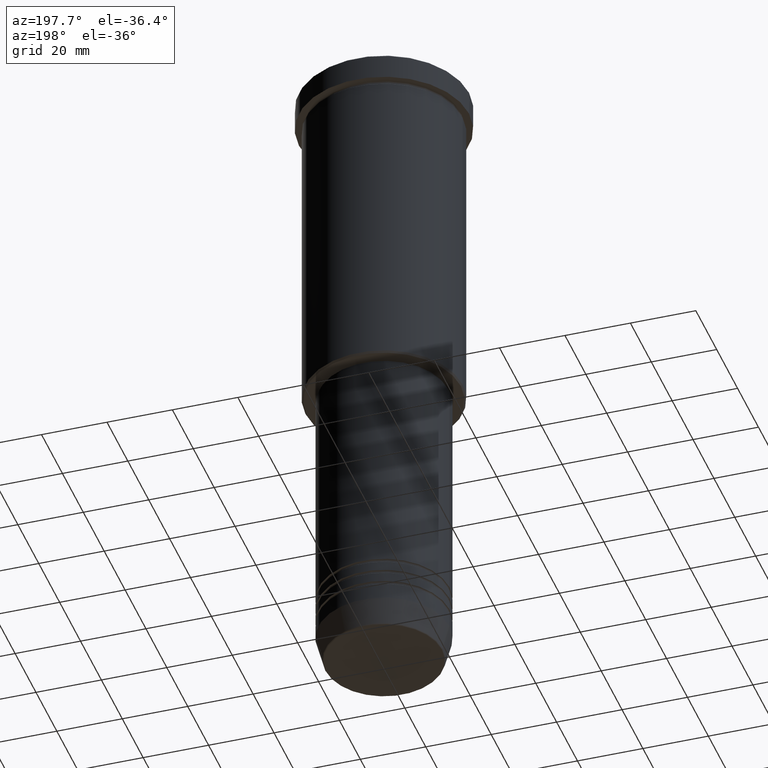
[diagram: clean part render]
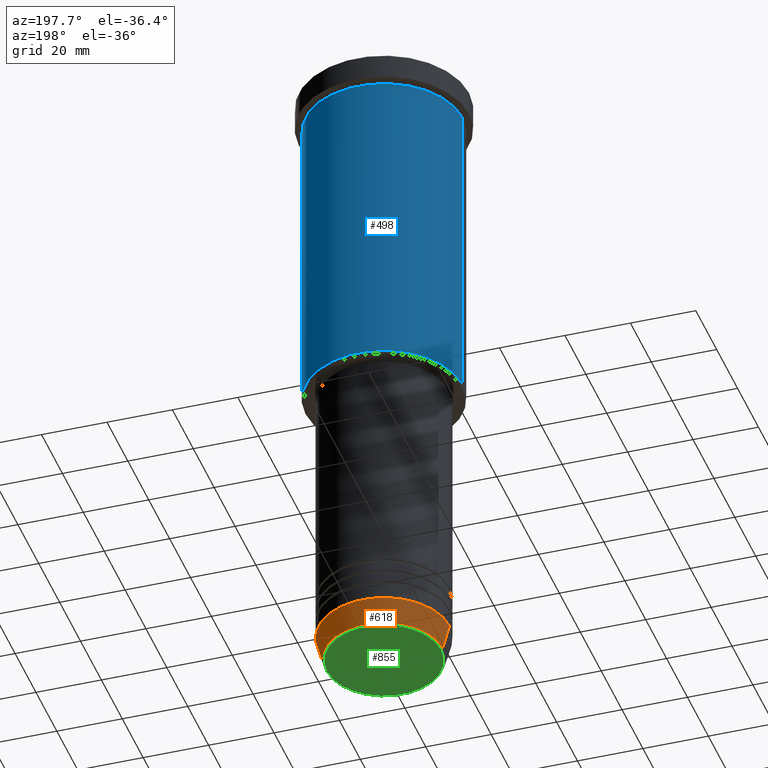
[diagram: same view with three faces highlighted in distinct colors, each labeled with its STEP entity id]
A machine part, auxiliary view with three faces highlighted in distinct colors.
Their STEP definitions:

[orange] entity #618 — the highlighted conical surface has half-angle 15 deg.
#16 = VECTOR ( 'NONE', #709, 1000.000000000000000 ) ;
#69 = DIRECTION ( 'NONE',  ( 1.000000000000000000, 0.000000000000000000, 0.000000000000000000 ) ) ;
#92 = VERTEX_POINT ( 'NONE', #394 ) ;
#122 = CARTESIAN_POINT ( 'NONE',  ( 0.000000000000000000, 0.000000000000000000, -192.0000000000000284 ) ) ;
#129 = ORIENTED_EDGE ( 'NONE', *, *, #1167, .F. ) ;
#165 = ORIENTED_EDGE ( 'NONE', *, *, #265, .F. ) ;
#193 = ORIENTED_EDGE ( 'NONE', *, *, #612, .T. ) ;
#240 = VERTEX_POINT ( 'NONE', #400 ) ;
#265 = EDGE_CURVE ( 'NONE', #444, #92, #1058, .T. ) ;
#316 = AXIS2_PLACEMENT_3D ( 'NONE', #850, #739, #69 ) ;
#333 = LINE ( 'NONE', #514, #16 ) ;
#394 = CARTESIAN_POINT ( 'NONE',  ( 20.00000000000000355, 0.000000000000000000, -192.0000000000000284 ) ) ;
#400 = CARTESIAN_POINT ( 'NONE',  ( -17.95570587970607690, 2.324116685748021371E-15, -199.6294095225512990 ) ) ;
#444 = VERTEX_POINT ( 'NONE', #1106 ) ;
#453 = ORIENTED_EDGE ( 'NONE', *, *, #622, .T. ) ;
#514 = CARTESIAN_POINT ( 'NONE',  ( -20.00000000000000355, 2.449293598294706907E-15, -192.0000000000000284 ) ) ;
#586 = CIRCLE ( 'NONE', #316, 17.95570587970607690 ) ;
#591 = DIRECTION ( 'NONE',  ( -0.000000000000000000, -0.000000000000000000, 1.000000000000000000 ) ) ;
#612 = EDGE_CURVE ( 'NONE', #240, #793, #333, .T. ) ;
#618 = ADVANCED_FACE ( 'NONE', ( #763 ), #718, .T. ) ;
#622 = EDGE_CURVE ( 'NONE', #444, #240, #586, .T. ) ;
#658 = CARTESIAN_POINT ( 'NONE',  ( -20.00000000000000355, 2.449293598294706907E-15, -192.0000000000000284 ) ) ;
#709 = DIRECTION ( 'NONE',  ( -0.2588190451025213501, 3.169619151431772337E-17, 0.9659258262890680902 ) ) ;
#718 = CONICAL_SURFACE ( 'NONE', #1178, 20.00000000000000355, 0.2617993877991500740 ) ;
#739 = DIRECTION ( 'NONE',  ( -0.000000000000000000, -0.000000000000000000, 1.000000000000000000 ) ) ;
#763 = FACE_OUTER_BOUND ( 'NONE', #961, .T. ) ;
#782 = VECTOR ( 'NONE', #894, 1000.000000000000000 ) ;
#793 = VERTEX_POINT ( 'NONE', #658 ) ;
#799 = DIRECTION ( 'NONE',  ( 1.000000000000000000, 0.000000000000000000, 0.000000000000000000 ) ) ;
#807 = CARTESIAN_POINT ( 'NONE',  ( 20.00000000000000355, 0.000000000000000000, -192.0000000000000284 ) ) ;
#829 = DIRECTION ( 'NONE',  ( -0.000000000000000000, -0.000000000000000000, 1.000000000000000000 ) ) ;
#850 = CARTESIAN_POINT ( 'NONE',  ( 0.000000000000000000, 0.000000000000000000, -199.6294095225512990 ) ) ;
#894 = DIRECTION ( 'NONE',  ( 0.2588190451025213501, 0.000000000000000000, 0.9659258262890680902 ) ) ;
#902 = DIRECTION ( 'NONE',  ( 1.000000000000000000, 0.000000000000000000, 0.000000000000000000 ) ) ;
#930 = AXIS2_PLACEMENT_3D ( 'NONE', #1002, #829, #902 ) ;
#961 = EDGE_LOOP ( 'NONE', ( #453, #193, #129, #165 ) ) ;
#1002 = CARTESIAN_POINT ( 'NONE',  ( 0.000000000000000000, 0.000000000000000000, -192.0000000000000284 ) ) ;
#1058 = LINE ( 'NONE', #807, #782 ) ;
#1076 = CIRCLE ( 'NONE', #930, 20.00000000000000355 ) ;
#1106 = CARTESIAN_POINT ( 'NONE',  ( 17.95570587970607690, 0.000000000000000000, -199.6294095225512990 ) ) ;
#1167 = EDGE_CURVE ( 'NONE', #92, #793, #1076, .T. ) ;
#1178 = AXIS2_PLACEMENT_3D ( 'NONE', #122, #591, #799 ) ;

[blue] entity #498 — the highlighted cylindrical surface (partial cylindrical patch) has radius 24 mm, axis along (-0, -0, 1).
#4 = CARTESIAN_POINT ( 'NONE',  ( 24.00000000000000000, 0.000000000000000000, 0.000000000000000000 ) ) ;
#9 = VERTEX_POINT ( 'NONE', #913 ) ;
#10 = ORIENTED_EDGE ( 'NONE', *, *, #877, .T. ) ;
#46 = AXIS2_PLACEMENT_3D ( 'NONE', #792, #148, #319 ) ;
#50 = ORIENTED_EDGE ( 'NONE', *, *, #1109, .F. ) ;
#64 = LINE ( 'NONE', #4, #238 ) ;
#93 = CYLINDRICAL_SURFACE ( 'NONE', #1122, 24.00000000000000000 ) ;
#111 = CARTESIAN_POINT ( 'NONE',  ( 0.000000000000000000, 0.000000000000000000, -105.5000000000000284 ) ) ;
#148 = DIRECTION ( 'NONE',  ( -0.000000000000000000, -0.000000000000000000, 1.000000000000000000 ) ) ;
#181 = CIRCLE ( 'NONE', #46, 24.00000000000000000 ) ;
#187 = VERTEX_POINT ( 'NONE', #983 ) ;
#195 = DIRECTION ( 'NONE',  ( -1.000000000000000000, 0.000000000000000000, 0.000000000000000000 ) ) ;
#238 = VECTOR ( 'NONE', #722, 1000.000000000000000 ) ;
#239 = DIRECTION ( 'NONE',  ( 1.000000000000000000, 0.000000000000000000, 0.000000000000000000 ) ) ;
#241 = DIRECTION ( 'NONE',  ( -0.000000000000000000, -0.000000000000000000, 1.000000000000000000 ) ) ;
#242 = ORIENTED_EDGE ( 'NONE', *, *, #998, .T. ) ;
#319 = DIRECTION ( 'NONE',  ( 1.000000000000000000, 0.000000000000000000, 0.000000000000000000 ) ) ;
#339 = VERTEX_POINT ( 'NONE', #564 ) ;
#341 = ORIENTED_EDGE ( 'NONE', *, *, #1021, .F. ) ;
#467 = CARTESIAN_POINT ( 'NONE',  ( 0.000000000000000000, 0.000000000000000000, 0.000000000000000000 ) ) ;
#491 = CIRCLE ( 'NONE', #768, 24.00000000000000000 ) ;
#493 = CARTESIAN_POINT ( 'NONE',  ( -24.00000000000000000, 2.939152317953647894E-15, 0.000000000000000000 ) ) ;
#498 = ADVANCED_FACE ( 'NONE', ( #931 ), #93, .T. ) ;
#564 = CARTESIAN_POINT ( 'NONE',  ( 24.00000000000000000, 0.000000000000000000, -8.999999999999994671 ) ) ;
#669 = EDGE_LOOP ( 'NONE', ( #10, #242, #341, #50 ) ) ;
#722 = DIRECTION ( 'NONE',  ( -0.000000000000000000, -0.000000000000000000, 1.000000000000000000 ) ) ;
#768 = AXIS2_PLACEMENT_3D ( 'NONE', #111, #1024, #195 ) ;
#786 = VECTOR ( 'NONE', #241, 1000.000000000000000 ) ;
#792 = CARTESIAN_POINT ( 'NONE',  ( 0.000000000000000000, 0.000000000000000000, -8.999999999999994671 ) ) ;
#877 = EDGE_CURVE ( 'NONE', #187, #9, #491, .T. ) ;
#882 = CARTESIAN_POINT ( 'NONE',  ( -24.00000000000000000, 2.939152317953647894E-15, -8.999999999999994671 ) ) ;
#889 = DIRECTION ( 'NONE',  ( -0.000000000000000000, -0.000000000000000000, 1.000000000000000000 ) ) ;
#913 = CARTESIAN_POINT ( 'NONE',  ( -24.00000000000000000, 2.939152317953647894E-15, -105.5000000000000284 ) ) ;
#929 = VERTEX_POINT ( 'NONE', #882 ) ;
#931 = FACE_OUTER_BOUND ( 'NONE', #669, .T. ) ;
#978 = LINE ( 'NONE', #493, #786 ) ;
#983 = CARTESIAN_POINT ( 'NONE',  ( 24.00000000000000000, 0.000000000000000000, -105.5000000000000284 ) ) ;
#998 = EDGE_CURVE ( 'NONE', #9, #929, #978, .T. ) ;
#1021 = EDGE_CURVE ( 'NONE', #339, #929, #181, .T. ) ;
#1024 = DIRECTION ( 'NONE',  ( -0.000000000000000000, -0.000000000000000000, 1.000000000000000000 ) ) ;
#1109 = EDGE_CURVE ( 'NONE', #187, #339, #64, .T. ) ;
#1122 = AXIS2_PLACEMENT_3D ( 'NONE', #467, #889, #239 ) ;

[green] entity #855 — the highlighted planar face has unit normal (0, -0, 1).
#14 = DIRECTION ( 'NONE',  ( 0.000000000000000000, -0.000000000000000000, 1.000000000000000000 ) ) ;
#25 = EDGE_CURVE ( 'NONE', #814, #679, #838, .T. ) ;
#169 = CARTESIAN_POINT ( 'NONE',  ( -17.47274296656154036, 2.169366823916868503E-15, -200.0000000000000000 ) ) ;
#174 = EDGE_LOOP ( 'NONE', ( #787, #326 ) ) ;
#268 = DIRECTION ( 'NONE',  ( 1.000000000000000000, 0.000000000000000000, 0.000000000000000000 ) ) ;
#326 = ORIENTED_EDGE ( 'NONE', *, *, #631, .T. ) ;
#334 = AXIS2_PLACEMENT_3D ( 'NONE', #772, #14, #935 ) ;
#379 = CARTESIAN_POINT ( 'NONE',  ( 17.47274296656154036, 0.000000000000000000, -200.0000000000000000 ) ) ;
#398 = FACE_OUTER_BOUND ( 'NONE', #174, .T. ) ;
#435 = DIRECTION ( 'NONE',  ( 0.000000000000000000, 0.000000000000000000, -1.000000000000000000 ) ) ;
#521 = AXIS2_PLACEMENT_3D ( 'NONE', #1100, #1094, #268 ) ;
#631 = EDGE_CURVE ( 'NONE', #679, #814, #990, .T. ) ;
#679 = VERTEX_POINT ( 'NONE', #169 ) ;
#772 = CARTESIAN_POINT ( 'NONE',  ( 0.000000000000000000, 0.000000000000000000, -200.0000000000000000 ) ) ;
#787 = ORIENTED_EDGE ( 'NONE', *, *, #25, .T. ) ;
#814 = VERTEX_POINT ( 'NONE', #379 ) ;
#819 = AXIS2_PLACEMENT_3D ( 'NONE', #1170, #435, #1009 ) ;
#838 = CIRCLE ( 'NONE', #521, 17.47274296656154036 ) ;
#855 = ADVANCED_FACE ( 'NONE', ( #398 ), #867, .F. ) ;
#867 = PLANE ( 'NONE',  #334 ) ;
#935 = DIRECTION ( 'NONE',  ( 1.000000000000000000, 0.000000000000000000, 0.000000000000000000 ) ) ;
#990 = CIRCLE ( 'NONE', #819, 17.47274296656154036 ) ;
#1009 = DIRECTION ( 'NONE',  ( 1.000000000000000000, 0.000000000000000000, 0.000000000000000000 ) ) ;
#1094 = DIRECTION ( 'NONE',  ( 0.000000000000000000, 0.000000000000000000, -1.000000000000000000 ) ) ;
#1100 = CARTESIAN_POINT ( 'NONE',  ( 0.000000000000000000, 0.000000000000000000, -200.0000000000000000 ) ) ;
#1170 = CARTESIAN_POINT ( 'NONE',  ( 0.000000000000000000, 0.000000000000000000, -200.0000000000000000 ) ) ;